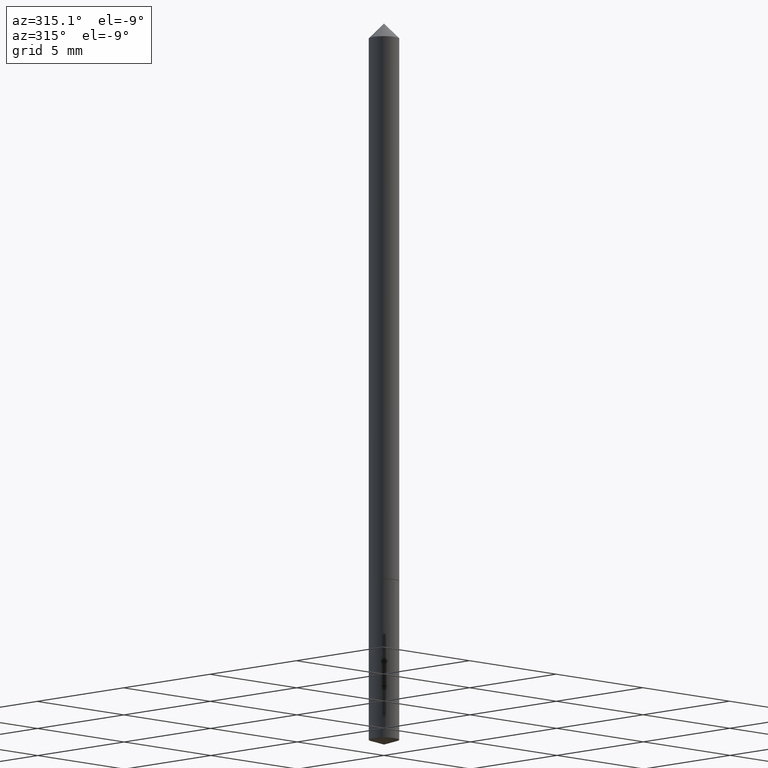
[diagram: clean part render]
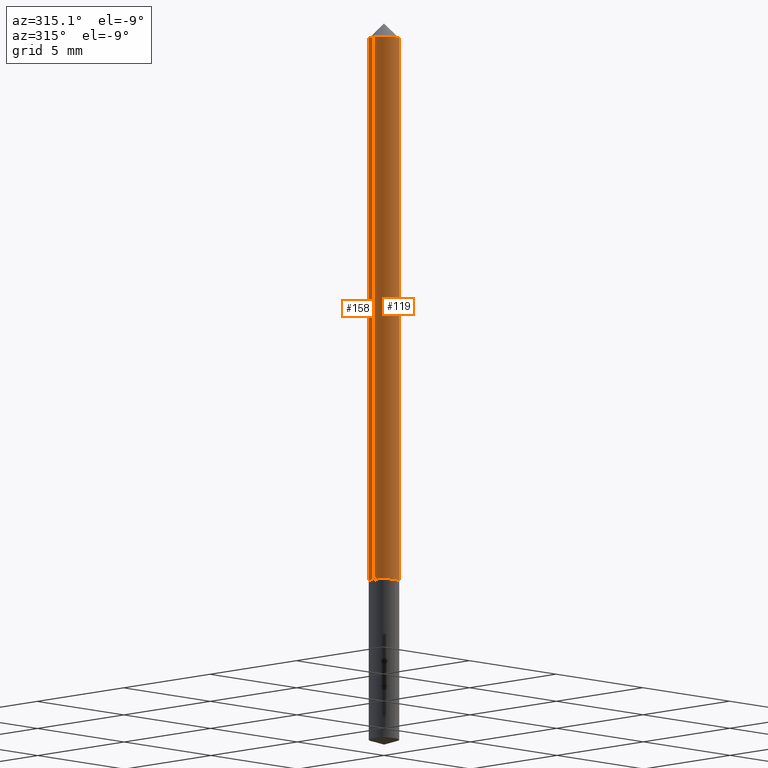
[diagram: same view with one multi-face feature highlighted, each face labeled with its STEP entity id]
A machine part, auxiliary view. The highlighted faces form ONE feature: a constant-radius fillet chain: 2 tangent blend faces with common blend radius 0.6248 mm. The faces share edges in the B-rep.
Their STEP definitions:
[1] entity #158 (Cylinder):
#8 = CARTESIAN_POINT ( 'NONE',  ( 2.237114863898163135E-29, -3.194007128773709542E-15, -0.9148000000000000576 ) ) ;
#15 = DIRECTION ( 'NONE',  ( -2.445468806185136877E-29, 3.491481338843145188E-15, 1.000000000000000000 ) ) ;
#32 = VERTEX_POINT ( 'NONE', #65 ) ;
#36 = EDGE_CURVE ( 'NONE', #32, #112, #61, .T. ) ;
#40 = CARTESIAN_POINT ( 'NONE',  ( -0.02460000000000011136, -3.019213615776724031E-15, -0.9148000000000000576 ) ) ;
#56 = AXIS2_PLACEMENT_3D ( 'NONE', #347, #321, #99 ) ;
#61 = CIRCLE ( 'NONE', #354, 0.02460000000000011136 ) ;
#65 = CARTESIAN_POINT ( 'NONE',  ( 0.02460000000000011136, -3.365788010644792593E-15, -0.9148000000000000576 ) ) ;
#66 = EDGE_CURVE ( 'NONE', #307, #308, #292, .T. ) ;
#72 = DIRECTION ( 'NONE',  ( 1.000000000000000000, -6.982962677686269077E-15, 0.000000000000000000 ) ) ;
#89 = ORIENTED_EDGE ( 'NONE', *, *, #36, .T. ) ;
#99 = DIRECTION ( 'NONE',  ( 1.000000000000000000, -6.982962677686266711E-15, 4.876176775795935793E-29 ) ) ;
#112 = VERTEX_POINT ( 'NONE', #40 ) ;
#117 = CARTESIAN_POINT ( 'NONE',  ( 7.642090019328601786E-31, -1.091087918388490144E-16, -0.03125000000000020123 ) ) ;
#127 = CARTESIAN_POINT ( 'NONE',  ( 0.02460000000000005932, -1.717808818710825825E-16, 1.199539486845803038E-30 ) ) ;
#140 = ORIENTED_EDGE ( 'NONE', *, *, #212, .T. ) ;
#158 = ADVANCED_FACE ( 'NONE', ( #238 ), #284, .T. ) ;
#169 = VECTOR ( 'NONE', #329, 39.37007874015748143 ) ;
#174 = ORIENTED_EDGE ( 'NONE', *, *, #66, .F. ) ;
#179 = DIRECTION ( 'NONE',  ( -2.445468806185136597E-29, 3.491481338843145583E-15, 1.000000000000000000 ) ) ;
#192 = CARTESIAN_POINT ( 'NONE',  ( 0.02460000000000000381, -2.808896737099312148E-16, -0.03125000000000020123 ) ) ;
#201 = ORIENTED_EDGE ( 'NONE', *, *, #296, .F. ) ;
#207 = DIRECTION ( 'NONE',  ( -2.445468806185136597E-29, 3.491481338843145583E-15, 1.000000000000000000 ) ) ;
#212 = EDGE_CURVE ( 'NONE', #112, #308, #247, .T. ) ;
#238 = FACE_OUTER_BOUND ( 'NONE', #255, .T. ) ;
#242 = CARTESIAN_POINT ( 'NONE',  ( -0.02460000000000005932, 1.747935129969850672E-16, -1.210058032202709861E-30 ) ) ;
#247 = LINE ( 'NONE', #242, #263 ) ;
#255 = EDGE_LOOP ( 'NONE', ( #89, #140, #174, #201 ) ) ;
#263 = VECTOR ( 'NONE', #15, 39.37007874015748143 ) ;
#284 = CYLINDRICAL_SURFACE ( 'NONE', #56, 0.02460000000000005932 ) ;
#286 = DIRECTION ( 'NONE',  ( 1.000000000000000000, -6.982962677686267499E-15, 0.000000000000000000 ) ) ;
#292 = CIRCLE ( 'NONE', #305, 0.02460000000000000381 ) ;
#296 = EDGE_CURVE ( 'NONE', #32, #307, #332, .T. ) ;
#301 = CARTESIAN_POINT ( 'NONE',  ( -0.02460000000000000381, -1.476764447309292430E-15, -0.03125000000000020123 ) ) ;
#305 = AXIS2_PLACEMENT_3D ( 'NONE', #117, #179, #286 ) ;
#307 = VERTEX_POINT ( 'NONE', #192 ) ;
#308 = VERTEX_POINT ( 'NONE', #301 ) ;
#321 = DIRECTION ( 'NONE',  ( -2.445468806185136597E-29, 3.491481338843145583E-15, 1.000000000000000000 ) ) ;
#329 = DIRECTION ( 'NONE',  ( -2.445468806185136877E-29, 3.491481338843145188E-15, 1.000000000000000000 ) ) ;
#332 = LINE ( 'NONE', #127, #169 ) ;
#347 = CARTESIAN_POINT ( 'NONE',  ( 0.000000000000000000, 0.000000000000000000, 0.000000000000000000 ) ) ;
#354 = AXIS2_PLACEMENT_3D ( 'NONE', #8, #207, #72 ) ;
[2] entity #119 (Cylinder):
#15 = DIRECTION ( 'NONE',  ( -2.445468806185136877E-29, 3.491481338843145188E-15, 1.000000000000000000 ) ) ;
#28 = EDGE_CURVE ( 'NONE', #308, #307, #357, .T. ) ;
#32 = VERTEX_POINT ( 'NONE', #65 ) ;
#40 = CARTESIAN_POINT ( 'NONE',  ( -0.02460000000000011136, -3.019213615776724031E-15, -0.9148000000000000576 ) ) ;
#44 = FACE_OUTER_BOUND ( 'NONE', #175, .T. ) ;
#65 = CARTESIAN_POINT ( 'NONE',  ( 0.02460000000000011136, -3.365788010644792593E-15, -0.9148000000000000576 ) ) ;
#96 = DIRECTION ( 'NONE',  ( 1.000000000000000000, -6.982962677686266711E-15, 4.876176775795935793E-29 ) ) ;
#106 = DIRECTION ( 'NONE',  ( 1.000000000000000000, -6.982962677686269077E-15, 0.000000000000000000 ) ) ;
#112 = VERTEX_POINT ( 'NONE', #40 ) ;
#115 = ORIENTED_EDGE ( 'NONE', *, *, #28, .F. ) ;
#119 = ADVANCED_FACE ( 'NONE', ( #44 ), #183, .T. ) ;
#127 = CARTESIAN_POINT ( 'NONE',  ( 0.02460000000000005932, -1.717808818710825825E-16, 1.199539486845803038E-30 ) ) ;
#135 = AXIS2_PLACEMENT_3D ( 'NONE', #290, #237, #316 ) ;
#169 = VECTOR ( 'NONE', #329, 39.37007874015748143 ) ;
#175 = EDGE_LOOP ( 'NONE', ( #231, #338, #303, #115 ) ) ;
#183 = CYLINDRICAL_SURFACE ( 'NONE', #194, 0.02460000000000005932 ) ;
#192 = CARTESIAN_POINT ( 'NONE',  ( 0.02460000000000000381, -2.808896737099312148E-16, -0.03125000000000020123 ) ) ;
#194 = AXIS2_PLACEMENT_3D ( 'NONE', #289, #346, #96 ) ;
#197 = CIRCLE ( 'NONE', #239, 0.02460000000000011136 ) ;
#212 = EDGE_CURVE ( 'NONE', #112, #308, #247, .T. ) ;
#231 = ORIENTED_EDGE ( 'NONE', *, *, #212, .F. ) ;
#237 = DIRECTION ( 'NONE',  ( -2.445468806185136597E-29, 3.491481338843145583E-15, 1.000000000000000000 ) ) ;
#239 = AXIS2_PLACEMENT_3D ( 'NONE', #244, #294, #106 ) ;
#242 = CARTESIAN_POINT ( 'NONE',  ( -0.02460000000000005932, 1.747935129969850672E-16, -1.210058032202709861E-30 ) ) ;
#244 = CARTESIAN_POINT ( 'NONE',  ( 2.237114863898163135E-29, -3.194007128773709542E-15, -0.9148000000000000576 ) ) ;
#247 = LINE ( 'NONE', #242, #263 ) ;
#263 = VECTOR ( 'NONE', #15, 39.37007874015748143 ) ;
#289 = CARTESIAN_POINT ( 'NONE',  ( 0.000000000000000000, 0.000000000000000000, 0.000000000000000000 ) ) ;
#290 = CARTESIAN_POINT ( 'NONE',  ( 7.642090019328601786E-31, -1.091087918388490144E-16, -0.03125000000000020123 ) ) ;
#294 = DIRECTION ( 'NONE',  ( -2.445468806185136597E-29, 3.491481338843145583E-15, 1.000000000000000000 ) ) ;
#296 = EDGE_CURVE ( 'NONE', #32, #307, #332, .T. ) ;
#301 = CARTESIAN_POINT ( 'NONE',  ( -0.02460000000000000381, -1.476764447309292430E-15, -0.03125000000000020123 ) ) ;
#303 = ORIENTED_EDGE ( 'NONE', *, *, #296, .T. ) ;
#307 = VERTEX_POINT ( 'NONE', #192 ) ;
#308 = VERTEX_POINT ( 'NONE', #301 ) ;
#316 = DIRECTION ( 'NONE',  ( 1.000000000000000000, -6.982962677686267499E-15, 0.000000000000000000 ) ) ;
#329 = DIRECTION ( 'NONE',  ( -2.445468806185136877E-29, 3.491481338843145188E-15, 1.000000000000000000 ) ) ;
#332 = LINE ( 'NONE', #127, #169 ) ;
#336 = EDGE_CURVE ( 'NONE', #112, #32, #197, .T. ) ;
#338 = ORIENTED_EDGE ( 'NONE', *, *, #336, .T. ) ;
#346 = DIRECTION ( 'NONE',  ( -2.445468806185136597E-29, 3.491481338843145583E-15, 1.000000000000000000 ) ) ;
#357 = CIRCLE ( 'NONE', #135, 0.02460000000000000381 ) ;